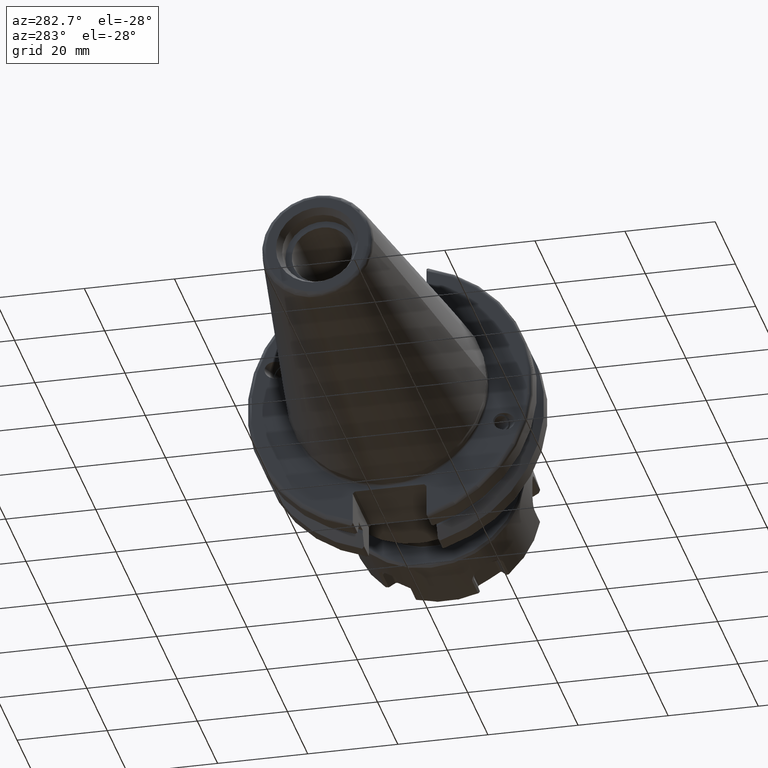
[diagram: clean part render]
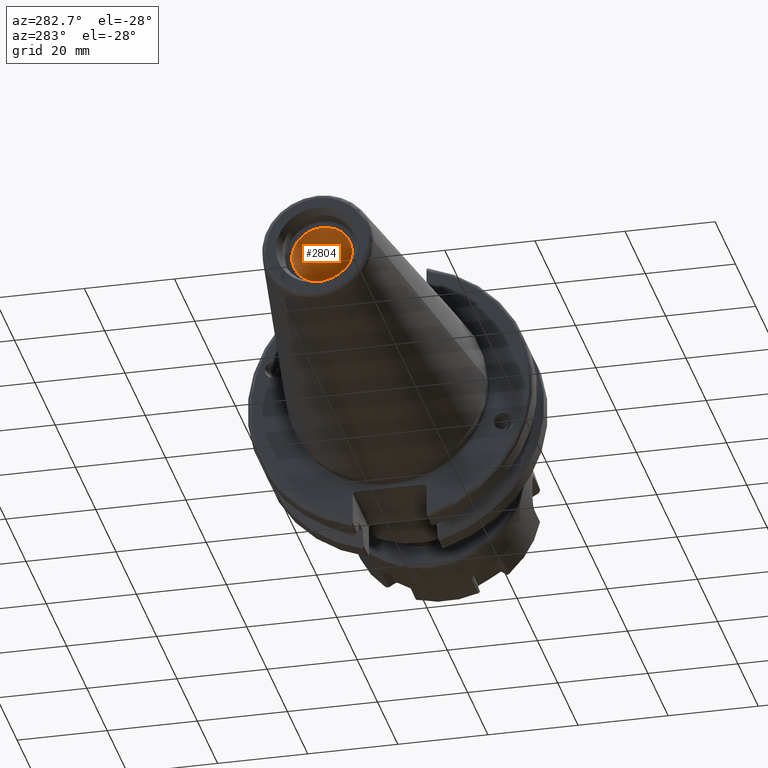
[diagram: same view with one face highlighted and labeled with its STEP entity id]
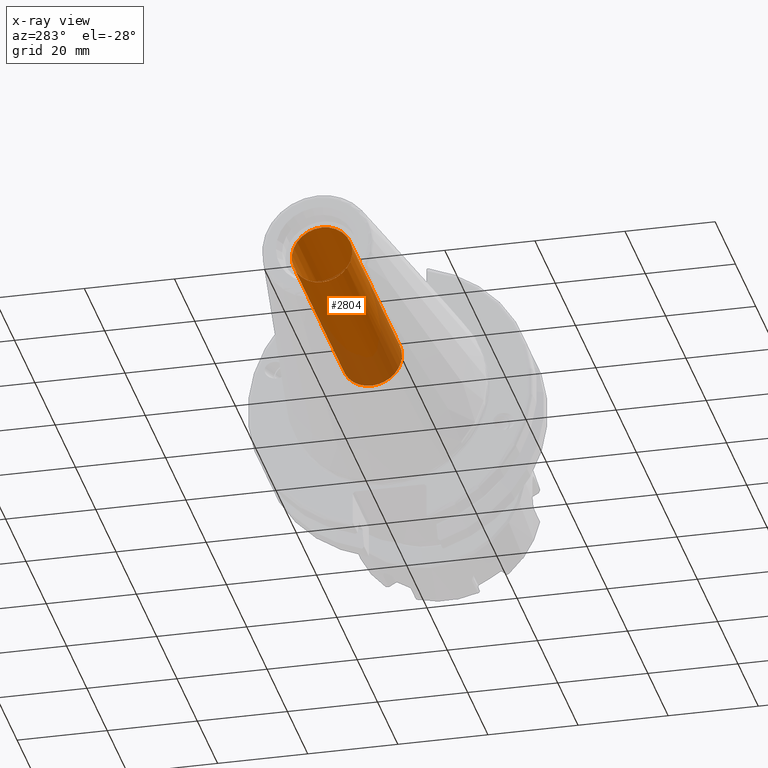
[diagram: x-ray of the same camera — body ghosted, the highlighted face saturated]
A machine part, auxiliary view. The second image highlights one B-rep face of the part: STEP entity #2804.
The next image is the same camera in x-ray: the body ghosted, the highlighted face saturated — about 27% of this face is hidden behind the body in this view.
In plain terms, the highlighted cylindrical surface (bore or boss wall) has radius 6.6929 mm, axis along (-1, 0, 0).
Its self-contained STEP definition (entity closure, byte-faithful):
#174=B_SPLINE_CURVE_WITH_KNOTS('',3,(#4137,#4138,#4139,#4140,#4141,#4142,
#4143,#4144,#4145,#4146,#4147,#4148,#4149,#4150,#4151,#4152,#4153,#4154),
 .UNSPECIFIED.,.F.,.F.,(4,2,2,2,2,2,2,2,4),(0.0203406385130867,0.239732353042974,
0.479464706085948,0.732676136562113,0.985887567038277,1.25189533935711,
1.51790311167595,1.78859577962974,2.05928844758353),.UNSPECIFIED.);
#175=B_SPLINE_CURVE_WITH_KNOTS('',3,(#4156,#4157,#4158,#4159),
 .UNSPECIFIED.,.F.,.F.,(4,4),(0.,0.0203406385130867),.UNSPECIFIED.);
#176=B_SPLINE_CURVE_WITH_KNOTS('',3,(#4160,#4161,#4162,#4163,#4164,#4165,
#4166,#4167,#4168,#4169,#4170,#4171,#4172,#4173,#4174,#4175,#4176,#4177),
 .UNSPECIFIED.,.F.,.F.,(4,2,2,2,2,2,2,2,4),(2.05928844758353,2.32403834553769,
2.58878824349186,2.84031075222517,3.09183326095848,3.33044724307591,3.56906122519335,
3.80273799841876,4.03641477164418),.UNSPECIFIED.);
#269=CYLINDRICAL_SURFACE('',#3096,6.6929);
#421=FACE_OUTER_BOUND('',#594,.T.);
#594=EDGE_LOOP('',(#2068,#2069,#2070,#2071,#2072,#2073));
#761=LINE('',#4423,#940);
#940=VECTOR('',#3516,6.6929);
#1131=CIRCLE('',#3097,6.6929);
#1230=VERTEX_POINT('',#4134);
#1231=VERTEX_POINT('',#4136);
#1232=VERTEX_POINT('',#4155);
#1279=VERTEX_POINT('',#4421);
#1503=EDGE_CURVE('',#1231,#1230,#174,.T.);
#1504=EDGE_CURVE('',#1232,#1231,#175,.T.);
#1505=EDGE_CURVE('',#1230,#1232,#176,.T.);
#1576=EDGE_CURVE('',#1279,#1279,#1131,.T.);
#1577=EDGE_CURVE('',#1279,#1231,#761,.T.);
#2068=ORIENTED_EDGE('',*,*,#1576,.F.);
#2069=ORIENTED_EDGE('',*,*,#1577,.T.);
#2070=ORIENTED_EDGE('',*,*,#1503,.T.);
#2071=ORIENTED_EDGE('',*,*,#1505,.T.);
#2072=ORIENTED_EDGE('',*,*,#1504,.T.);
#2073=ORIENTED_EDGE('',*,*,#1577,.F.);
#2804=ADVANCED_FACE('',(#421),#269,.F.);
#3096=AXIS2_PLACEMENT_3D('',#4420,#3512,#3513);
#3097=AXIS2_PLACEMENT_3D('',#4422,#3514,#3515);
#3512=DIRECTION('center_axis',(-1.,0.,0.));
#3513=DIRECTION('ref_axis',(0.,0.,1.));
#3514=DIRECTION('center_axis',(1.,0.,0.));
#3515=DIRECTION('ref_axis',(0.,0.,1.));
#3516=DIRECTION('',(1.,0.,0.));
#4134=CARTESIAN_POINT('',(-13.9492860656205,-0.204508471068103,6.68977478658747));
#4136=CARTESIAN_POINT('',(-14.4699368851865,-5.48599806178811E-16,-6.6929));
#4137=CARTESIAN_POINT('Ctrl Pts',(-14.4699368851865,-8.32667268468867E-16,
-6.6929));
#4138=CARTESIAN_POINT('Ctrl Pts',(-14.4554215296693,0.73943481866595,-6.6929));
#4139=CARTESIAN_POINT('Ctrl Pts',(-14.434765598394,1.52100927292802,-6.5641376271263));
#4140=CARTESIAN_POINT('Ctrl Pts',(-14.3824811987767,3.05550123082539,-6.01522667715231));
#4141=CARTESIAN_POINT('Ctrl Pts',(-14.3499909874631,3.79904494217537,-5.56773614622311));
#4142=CARTESIAN_POINT('Ctrl Pts',(-14.2831877397461,5.03604611411774,-4.48824829381936));
#4143=CARTESIAN_POINT('Ctrl Pts',(-14.2440611376216,5.60241892918331,-3.76953782155832));
#4144=CARTESIAN_POINT('Ctrl Pts',(-14.166673105852,6.39622119673095,-2.16445550240156));
#4145=CARTESIAN_POINT('Ctrl Pts',(-14.1284057578286,6.62364871958693,-1.27808298655565));
#4146=CARTESIAN_POINT('Ctrl Pts',(-14.0606372917924,6.73643438716132,0.447638746804235));
#4147=CARTESIAN_POINT('Ctrl Pts',(-14.0270628298614,6.61173830494667,1.39965743343805));
#4148=CARTESIAN_POINT('Ctrl Pts',(-13.9725560735846,5.97256014890296,3.16269657128779));
#4149=CARTESIAN_POINT('Ctrl Pts',(-13.9515838932921,5.45807302483437,3.97371395821393));
#4150=CARTESIAN_POINT('Ctrl Pts',(-13.9252491994693,4.22442706523482,5.26907119899809));
#4151=CARTESIAN_POINT('Ctrl Pts',(-13.9184993386002,3.42395521541682,5.82924567762632));
#4152=CARTESIAN_POINT('Ctrl Pts',(-13.9222342261895,1.6603551611766,6.55338044264657));
#4153=CARTESIAN_POINT('Ctrl Pts',(-13.932722540934,0.697227125198426,6.7173411208787));
#4154=CARTESIAN_POINT('Ctrl Pts',(-13.9492860656205,-0.204508471068102,
6.68977478658747));
#4155=CARTESIAN_POINT('',(-14.4738225239777,-0.204508471068103,-6.68977478658747));
#4156=CARTESIAN_POINT('Ctrl Pts',(-14.4738225239777,-0.204508471068103,
-6.68977478658747));
#4157=CARTESIAN_POINT('Ctrl Pts',(-14.4725778923048,-0.136749421897361,
-6.69184620154373));
#4158=CARTESIAN_POINT('Ctrl Pts',(-14.4712826588868,-0.0685558084210382,
-6.6929));
#4159=CARTESIAN_POINT('Ctrl Pts',(-14.4699368851865,-6.98741168296813E-16,
-6.6929));
#4160=CARTESIAN_POINT('Ctrl Pts',(-13.9492860656205,-0.204508471068102,
6.68977478658747));
#4161=CARTESIAN_POINT('Ctrl Pts',(-13.9654859557161,-1.08644742012732,6.66281364188509));
#4162=CARTESIAN_POINT('Ctrl Pts',(-13.9894987847269,-2.01826439406812,6.44925820291107));
#4163=CARTESIAN_POINT('Ctrl Pts',(-14.0489541155125,-3.70593452137096,5.65087354911898));
#4164=CARTESIAN_POINT('Ctrl Pts',(-14.0844367169758,-4.46178912693929,5.06605039077644));
#4165=CARTESIAN_POINT('Ctrl Pts',(-14.1544016427185,-5.59266851852365,3.7707739214298));
#4166=CARTESIAN_POINT('Ctrl Pts',(-14.1931802743247,-6.05471258553589,2.98781267221432));
#4167=CARTESIAN_POINT('Ctrl Pts',(-14.2701251338681,-6.62502190165845,1.30217275599571));
#4168=CARTESIAN_POINT('Ctrl Pts',(-14.308290080762,-6.73328787386849,0.399494275165998));
#4169=CARTESIAN_POINT('Ctrl Pts',(-14.372262672597,-6.62681960184467,-1.22956564792747));
#4170=CARTESIAN_POINT('Ctrl Pts',(-14.4027648414552,-6.42131501529276,-2.06870128416594));
#4171=CARTESIAN_POINT('Ctrl Pts',(-14.4524184897669,-5.70322607957486,-3.60361260690763));
#4172=CARTESIAN_POINT('Ctrl Pts',(-14.4715305802841,-5.19063411925513,-4.2993860065787));
#4173=CARTESIAN_POINT('Ctrl Pts',(-14.4947033787277,-4.05047745133328,-5.38471278298616));
#4174=CARTESIAN_POINT('Ctrl Pts',(-14.5006691714013,-3.34643268966903,-5.85551144655251));
#4175=CARTESIAN_POINT('Ctrl Pts',(-14.4973761760879,-1.81266188890392,-6.49614369635604));
#4176=CARTESIAN_POINT('Ctrl Pts',(-14.4881210678993,-0.982936147114466,
-6.66597801331126));
#4177=CARTESIAN_POINT('Ctrl Pts',(-14.4738225239777,-0.204508471068103,
-6.68977478658747));
#4420=CARTESIAN_POINT('Origin',(55.7900533063438,0.,0.));
#4421=CARTESIAN_POINT('',(-63.45,8.19643856201332E-16,-6.6929));
#4422=CARTESIAN_POINT('Origin',(-63.45,0.,0.));
#4423=CARTESIAN_POINT('',(55.7900533063438,-8.19643856201332E-16,-6.6929));